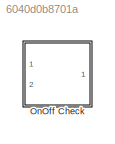
MODEL slx_6040d0b8701a
KIND library
CONFIG AbsTol = auto
CONFIG FixedStep = auto
CONFIG MaxStep = auto
CONFIG MinStep = auto
CONFIG RelTol = 1e-3
CONFIG SampleTimeConstraint = Unconstrained
CONFIG Solver = ode45
CONFIG SolverMode = Auto
CONFIG SolverName = ode45
CONFIG StartTime = 0.0
CONFIG StopTime = 10.0
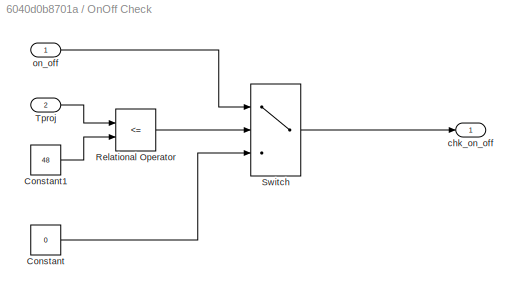
BLOCK [SubSystem] OnOff Check
  Ports = [2, 1]
  RequestExecContextInheritance = off
  TreatAsAtomicUnit = on
  Variant = off
BLOCK [Constant] OnOff Check/Constant
  OutDataTypeStr = boolean
  Value = 0
BLOCK [Constant] OnOff Check/Constant1
  OutDataTypeStr = single
  Value = 48
BLOCK [RelationalOperator] OnOff Check/Relational Operator
  InputSameDT = off
  Operator = <=
  OutDataTypeStr = boolean
  Ports = [2, 1]
BLOCK [Switch] OnOff Check/Switch
  Criteria = u2 ~= 0
  InputSameDT = off
  SaturateOnIntegerOverflow = off
BLOCK [Inport] OnOff Check/Tproj
  IconDisplay = Port number
  OutDataTypeStr = single
  OutMin = [0]
  Port = 2
BLOCK [Outport] OnOff Check/chk_on_off
  IconDisplay = Port number
BLOCK [Inport] OnOff Check/on_off
  IconDisplay = Port number
  OutDataTypeStr = boolean
LINE OnOff Check/Constant1:1 -> OnOff Check/Relational Operator:2
LINE OnOff Check/Constant:1 -> OnOff Check/Switch:3
LINE OnOff Check/Relational Operator:1 -> OnOff Check/Switch:2
LINE OnOff Check/Switch:1 -> OnOff Check/chk_on_off:1
LINE OnOff Check/Tproj:1 -> OnOff Check/Relational Operator:1
LINE OnOff Check/on_off:1 -> OnOff Check/Switch:1
